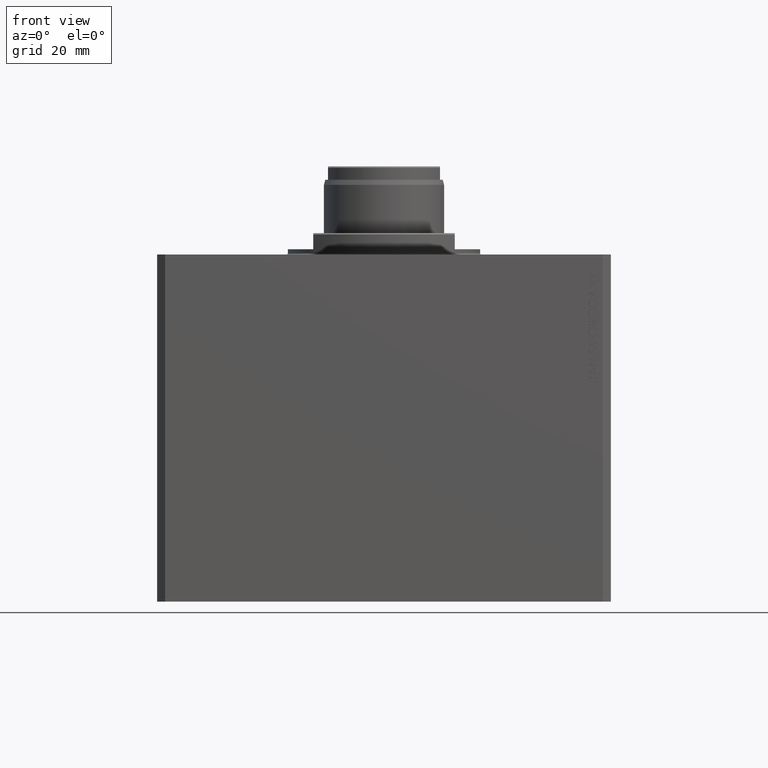
[diagram: clean part render]
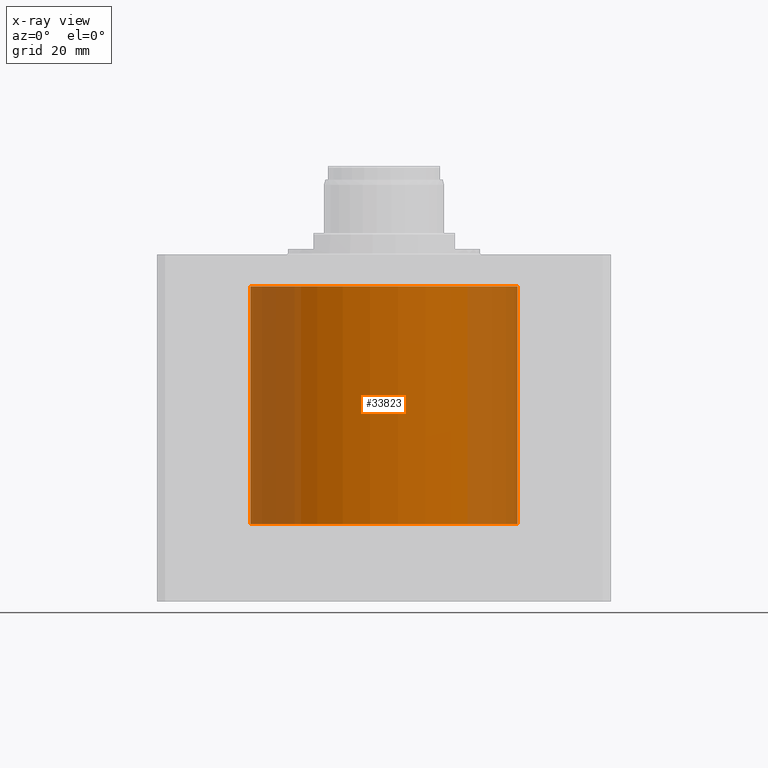
[diagram: x-ray — body ghosted, one internal face saturated and labeled with its STEP entity id]
A machine part, front view, then the same camera in x-ray: the body is ghosted and one INTERNAL B-rep face — a face not visible from any outside direction — is saturated and labeled: STEP entity #33823.
In plain terms, the highlighted cylindrical surface (partial cylindrical patch) has radius 50 mm, axis along (0, 0, 1).
Its self-contained STEP definition (entity closure, byte-faithful):
#1342 = DIRECTION ( 'NONE',  ( 1.000000000000000000, 0.000000000000000000, 0.000000000000000000 ) ) ;
#1357 = CARTESIAN_POINT ( 'NONE',  ( 50.00000000000000000, 0.000000000000000000, -12.00000000000000000 ) ) ;
#2582 = EDGE_LOOP ( 'NONE', ( #12802, #25172, #8706, #20752 ) ) ;
#4417 = DIRECTION ( 'NONE',  ( 1.000000000000000000, 0.000000000000000000, 0.000000000000000000 ) ) ;
#4852 = DIRECTION ( 'NONE',  ( 0.000000000000000000, 0.000000000000000000, 1.000000000000000000 ) ) ;
#7982 = CARTESIAN_POINT ( 'NONE',  ( 0.000000000000000000, 0.000000000000000000, -12.00000000000000000 ) ) ;
#8706 = ORIENTED_EDGE ( 'NONE', *, *, #10173, .T. ) ;
#9883 = VECTOR ( 'NONE', #15672, 1000.000000000000000 ) ;
#10173 = EDGE_CURVE ( 'NONE', #39150, #16084, #23605, .T. ) ;
#10962 = CARTESIAN_POINT ( 'NONE',  ( -50.00000000000000000, 6.123233995736766085E-15, -12.00000000000000000 ) ) ;
#11141 = EDGE_CURVE ( 'NONE', #20116, #16084, #37142, .T. ) ;
#12325 = CARTESIAN_POINT ( 'NONE',  ( -50.00000000000000000, 6.123233995736766085E-15, -100.9999999999999858 ) ) ;
#12802 = ORIENTED_EDGE ( 'NONE', *, *, #43676, .F. ) ;
#14783 = FACE_OUTER_BOUND ( 'NONE', #2582, .T. ) ;
#15672 = DIRECTION ( 'NONE',  ( -0.000000000000000000, -0.000000000000000000, 1.000000000000000000 ) ) ;
#16084 = VERTEX_POINT ( 'NONE', #1357 ) ;
#16649 = CARTESIAN_POINT ( 'NONE',  ( 50.00000000000000000, 0.000000000000000000, -100.9999999999999858 ) ) ;
#17973 = VECTOR ( 'NONE', #43625, 1000.000000000000000 ) ;
#18923 = EDGE_CURVE ( 'NONE', #28336, #39150, #42208, .T. ) ;
#20116 = VERTEX_POINT ( 'NONE', #26520 ) ;
#20745 = AXIS2_PLACEMENT_3D ( 'NONE', #7982, #4852, #4417 ) ;
#20752 = ORIENTED_EDGE ( 'NONE', *, *, #11141, .F. ) ;
#23605 = CIRCLE ( 'NONE', #20745, 50.00000000000000000 ) ;
#25172 = ORIENTED_EDGE ( 'NONE', *, *, #18923, .T. ) ;
#25403 = DIRECTION ( 'NONE',  ( 0.000000000000000000, 0.000000000000000000, 1.000000000000000000 ) ) ;
#25459 = DIRECTION ( 'NONE',  ( 1.000000000000000000, 0.000000000000000000, 0.000000000000000000 ) ) ;
#26520 = CARTESIAN_POINT ( 'NONE',  ( 50.00000000000000000, 0.000000000000000000, -100.9999999999999858 ) ) ;
#27923 = CYLINDRICAL_SURFACE ( 'NONE', #32079, 50.00000000000000000 ) ;
#28336 = VERTEX_POINT ( 'NONE', #44046 ) ;
#28993 = AXIS2_PLACEMENT_3D ( 'NONE', #32083, #25403, #1342 ) ;
#32079 = AXIS2_PLACEMENT_3D ( 'NONE', #41972, #38837, #25459 ) ;
#32083 = CARTESIAN_POINT ( 'NONE',  ( 0.000000000000000000, 0.000000000000000000, -100.9999999999999858 ) ) ;
#33823 = ADVANCED_FACE ( 'NONE', ( #14783 ), #27923, .F. ) ;
#34701 = CIRCLE ( 'NONE', #28993, 50.00000000000000000 ) ;
#37142 = LINE ( 'NONE', #16649, #17973 ) ;
#38837 = DIRECTION ( 'NONE',  ( -0.000000000000000000, -0.000000000000000000, 1.000000000000000000 ) ) ;
#39150 = VERTEX_POINT ( 'NONE', #10962 ) ;
#41972 = CARTESIAN_POINT ( 'NONE',  ( 0.000000000000000000, 0.000000000000000000, -100.9999999999999858 ) ) ;
#42208 = LINE ( 'NONE', #12325, #9883 ) ;
#43625 = DIRECTION ( 'NONE',  ( -0.000000000000000000, -0.000000000000000000, 1.000000000000000000 ) ) ;
#43676 = EDGE_CURVE ( 'NONE', #28336, #20116, #34701, .T. ) ;
#44046 = CARTESIAN_POINT ( 'NONE',  ( -50.00000000000000000, 6.123233995736766085E-15, -100.9999999999999858 ) ) ;